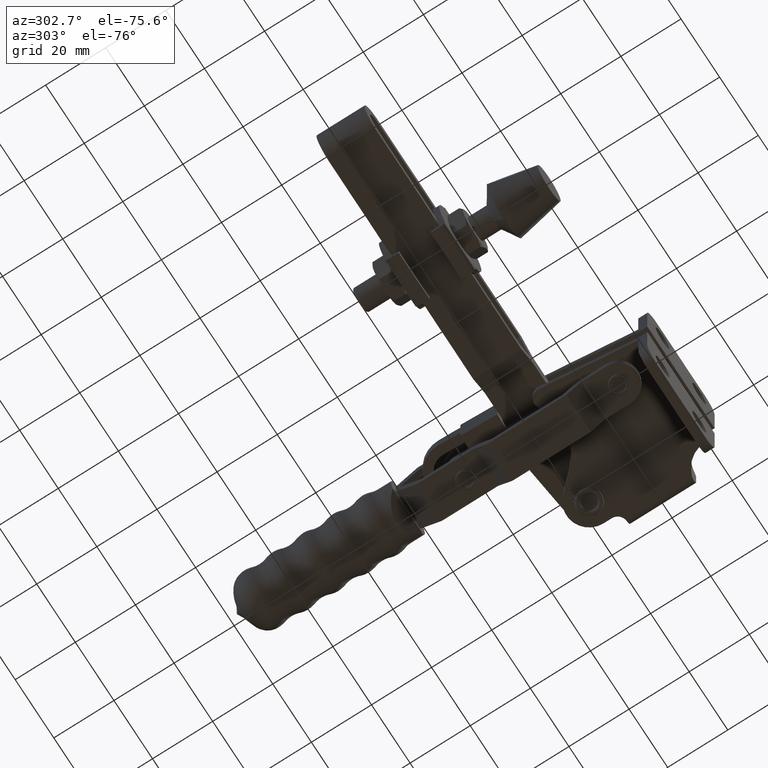
[diagram: clean part render]
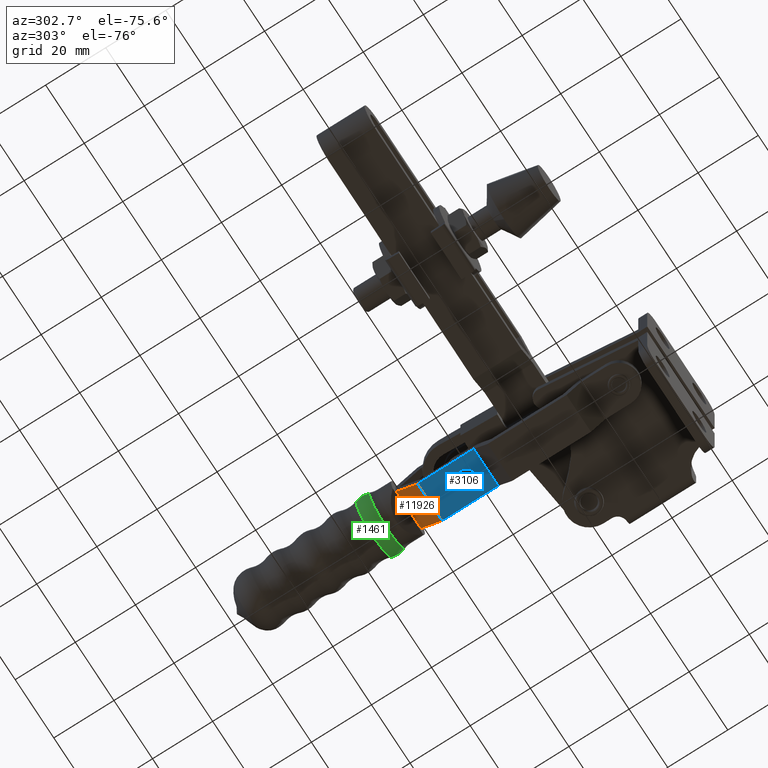
[diagram: same view with three faces highlighted in distinct colors, each labeled with its STEP entity id]
A machine part, auxiliary view with three faces highlighted in distinct colors.
Their STEP definitions:

[orange] entity #11926 — the highlighted planar face has unit normal (-0, -0.657, 0.7539).
#722 = LINE ( 'NONE', #4469, #7827 ) ;
#753 = AXIS2_PLACEMENT_3D ( 'NONE', #8274, #6411, #903 ) ;
#903 = DIRECTION ( 'NONE',  ( -6.188014670768188000E-017, -0.7539095027499086400, -0.6569782809677846600 ) ) ;
#1265 = VERTEX_POINT ( 'NONE', #8858 ) ;
#1568 = VECTOR ( 'NONE', #11826, 1000.000000000000000 ) ;
#2345 = VERTEX_POINT ( 'NONE', #9423 ) ;
#2883 = CARTESIAN_POINT ( 'NONE',  ( -30.45000000000020900, 83.99999999999963100, -3.099999999999995600 ) ) ;
#3305 = LINE ( 'NONE', #3766, #10426 ) ;
#3316 = CARTESIAN_POINT ( 'NONE',  ( -43.15000000000021200, 76.99999999999973000, -9.199999999999995700 ) ) ;
#3733 = LINE ( 'NONE', #5334, #1568 ) ;
#3766 = CARTESIAN_POINT ( 'NONE',  ( -30.45000000000020900, 83.99999999999963100, -3.099999999999995600 ) ) ;
#4469 = CARTESIAN_POINT ( 'NONE',  ( -30.45000000000020900, 76.99999999999970200, -9.199999999999995700 ) ) ;
#4587 = VECTOR ( 'NONE', #10752, 1000.000000000000000 ) ;
#5334 = CARTESIAN_POINT ( 'NONE',  ( -30.45000000000020900, 76.99999999999970200, -9.199999999999995700 ) ) ;
#5487 = PLANE ( 'NONE',  #753 ) ;
#5794 = ORIENTED_EDGE ( 'NONE', *, *, #10070, .T. ) ;
#5855 = FACE_OUTER_BOUND ( 'NONE', #8667, .T. ) ;
#5936 = VERTEX_POINT ( 'NONE', #9985 ) ;
#6411 = DIRECTION ( 'NONE',  ( -4.820246789765649200E-017, -0.6569782809677847700, 0.7539095027499087600 ) ) ;
#7417 = EDGE_CURVE ( 'NONE', #5936, #9729, #722, .T. ) ;
#7645 = ORIENTED_EDGE ( 'NONE', *, *, #7417, .F. ) ;
#7827 = VECTOR ( 'NONE', #10096, 1000.000000000000000 ) ;
#8274 = CARTESIAN_POINT ( 'NONE',  ( -30.45000000000020900, 76.99999999999970200, -9.199999999999995700 ) ) ;
#8547 = ORIENTED_EDGE ( 'NONE', *, *, #10874, .F. ) ;
#8667 = EDGE_LOOP ( 'NONE', ( #10627, #8547, #7645, #5794 ) ) ;
#8858 = CARTESIAN_POINT ( 'NONE',  ( -43.15000000000021200, 76.99999999999973000, -9.199999999999995700 ) ) ;
#9423 = CARTESIAN_POINT ( 'NONE',  ( -43.15000000000021900, 83.99999999999965900, -3.099999999999994300 ) ) ;
#9729 = VERTEX_POINT ( 'NONE', #2883 ) ;
#9949 = EDGE_CURVE ( 'NONE', #1265, #2345, #11245, .T. ) ;
#9985 = CARTESIAN_POINT ( 'NONE',  ( -30.45000000000020900, 76.99999999999970200, -9.199999999999995700 ) ) ;
#10070 = EDGE_CURVE ( 'NONE', #5936, #1265, #3733, .T. ) ;
#10096 = DIRECTION ( 'NONE',  ( -4.914215575483375600E-017, 0.7539095027499087600, 0.6569782809677847700 ) ) ;
#10426 = VECTOR ( 'NONE', #11203, 1000.000000000000000 ) ;
#10627 = ORIENTED_EDGE ( 'NONE', *, *, #9949, .T. ) ;
#10752 = DIRECTION ( 'NONE',  ( -4.914215575483375600E-017, 0.7539095027499087600, 0.6569782809677847700 ) ) ;
#10874 = EDGE_CURVE ( 'NONE', #9729, #2345, #3305, .T. ) ;
#11203 = DIRECTION ( 'NONE',  ( -1.000000000000000000, 6.037836059286573500E-035, 7.000092359566945500E-019 ) ) ;
#11245 = LINE ( 'NONE', #3316, #4587 ) ;
#11826 = DIRECTION ( 'NONE',  ( -1.000000000000000000, 6.037836059286573500E-035, 7.000092359566945500E-019 ) ) ;
#11926 = ADVANCED_FACE ( 'NONE', ( #5855 ), #5487, .F. ) ;

[blue] entity #3106 — the highlighted planar face has unit normal (0, 0, 1).
#409 = VERTEX_POINT ( 'NONE', #7790 ) ;
#493 = DIRECTION ( 'NONE',  ( -7.000092359567007100E-019, -1.120141832160471200E-017, -1.000000000000000000 ) ) ;
#620 = CARTESIAN_POINT ( 'NONE',  ( -39.91409646632142500, 64.89999999999987800, -9.199999999999986900 ) ) ;
#1265 = VERTEX_POINT ( 'NONE', #8858 ) ;
#1502 = LINE ( 'NONE', #10519, #6417 ) ;
#1568 = VECTOR ( 'NONE', #11826, 1000.000000000000000 ) ;
#2028 = FACE_OUTER_BOUND ( 'NONE', #5081, .T. ) ;
#2088 = EDGE_CURVE ( 'NONE', #10900, #4609, #2363, .T. ) ;
#2129 = VERTEX_POINT ( 'NONE', #620 ) ;
#2313 = FACE_BOUND ( 'NONE', #11300, .T. ) ;
#2363 = LINE ( 'NONE', #6739, #7019 ) ;
#2730 = CIRCLE ( 'NONE', #3392, 3.114096466321200700 ) ;
#3106 = ADVANCED_FACE ( 'NONE', ( #2028, #2313 ), #10634, .F. ) ;
#3392 = AXIS2_PLACEMENT_3D ( 'NONE', #6976, #493, #6020 ) ;
#3425 = CIRCLE ( 'NONE', #9970, 3.114096466321200700 ) ;
#3589 = LINE ( 'NONE', #8371, #7959 ) ;
#3733 = LINE ( 'NONE', #5334, #1568 ) ;
#3911 = DIRECTION ( 'NONE',  ( -7.000092359567007100E-019, -1.120141832160471200E-017, -1.000000000000000000 ) ) ;
#4070 = AXIS2_PLACEMENT_3D ( 'NONE', #6850, #5054, #5985 ) ;
#4170 = CARTESIAN_POINT ( 'NONE',  ( -43.15000000000022600, 58.29000000000017700, -9.199999999999986900 ) ) ;
#4439 = ORIENTED_EDGE ( 'NONE', *, *, #7228, .F. ) ;
#4609 = VERTEX_POINT ( 'NONE', #4170 ) ;
#5054 = DIRECTION ( 'NONE',  ( 7.000092359566945500E-019, 1.120141832160471200E-017, 1.000000000000000000 ) ) ;
#5081 = EDGE_LOOP ( 'NONE', ( #8437, #10331, #11792, #10454 ) ) ;
#5262 = EDGE_CURVE ( 'NONE', #10900, #5936, #1502, .T. ) ;
#5334 = CARTESIAN_POINT ( 'NONE',  ( -30.45000000000020900, 76.99999999999970200, -9.199999999999995700 ) ) ;
#5872 = DIRECTION ( 'NONE',  ( -6.037836059286575600E-035, 1.000000000000000000, -1.120141832160472100E-017 ) ) ;
#5874 = CARTESIAN_POINT ( 'NONE',  ( -30.45000000000020500, 58.29000000000017700, -9.199999999999986900 ) ) ;
#5936 = VERTEX_POINT ( 'NONE', #9985 ) ;
#5985 = DIRECTION ( 'NONE',  ( 1.000000000000000000, -6.037836059286574500E-035, -7.000092359566945500E-019 ) ) ;
#6020 = DIRECTION ( 'NONE',  ( 0.0000000000000000000, -1.000000000000000000, 0.0000000000000000000 ) ) ;
#6417 = VECTOR ( 'NONE', #5872, 1000.000000000000000 ) ;
#6739 = CARTESIAN_POINT ( 'NONE',  ( -30.45000000000020500, 58.29000000000017700, -9.199999999999986900 ) ) ;
#6850 = CARTESIAN_POINT ( 'NONE',  ( -30.45000000000020500, 58.29000000000017700, -9.199999999999986900 ) ) ;
#6976 = CARTESIAN_POINT ( 'NONE',  ( -36.80000000000023200, 64.89999999999987800, -9.199999999999986900 ) ) ;
#7019 = VECTOR ( 'NONE', #8867, 1000.000000000000000 ) ;
#7228 = EDGE_CURVE ( 'NONE', #2129, #409, #2730, .T. ) ;
#7411 = ORIENTED_EDGE ( 'NONE', *, *, #9254, .F. ) ;
#7790 = CARTESIAN_POINT ( 'NONE',  ( -33.68590353367903100, 64.89999999999987800, -9.199999999999986900 ) ) ;
#7959 = VECTOR ( 'NONE', #8416, 1000.000000000000000 ) ;
#8371 = CARTESIAN_POINT ( 'NONE',  ( -43.15000000000022600, 58.29000000000017700, -9.199999999999986900 ) ) ;
#8416 = DIRECTION ( 'NONE',  ( -6.037836059286575600E-035, 1.000000000000000000, -1.120141832160472100E-017 ) ) ;
#8437 = ORIENTED_EDGE ( 'NONE', *, *, #10864, .T. ) ;
#8858 = CARTESIAN_POINT ( 'NONE',  ( -43.15000000000021200, 76.99999999999973000, -9.199999999999995700 ) ) ;
#8867 = DIRECTION ( 'NONE',  ( -1.000000000000000000, 6.037836059286573500E-035, 7.000092359566945500E-019 ) ) ;
#9254 = EDGE_CURVE ( 'NONE', #409, #2129, #3425, .T. ) ;
#9524 = CARTESIAN_POINT ( 'NONE',  ( -36.80000000000023200, 64.89999999999987800, -9.199999999999986900 ) ) ;
#9970 = AXIS2_PLACEMENT_3D ( 'NONE', #9524, #3911, #10441 ) ;
#9985 = CARTESIAN_POINT ( 'NONE',  ( -30.45000000000020900, 76.99999999999970200, -9.199999999999995700 ) ) ;
#10070 = EDGE_CURVE ( 'NONE', #5936, #1265, #3733, .T. ) ;
#10331 = ORIENTED_EDGE ( 'NONE', *, *, #10070, .F. ) ;
#10441 = DIRECTION ( 'NONE',  ( 0.0000000000000000000, -1.000000000000000000, 0.0000000000000000000 ) ) ;
#10454 = ORIENTED_EDGE ( 'NONE', *, *, #2088, .T. ) ;
#10519 = CARTESIAN_POINT ( 'NONE',  ( -30.45000000000020500, 58.29000000000017700, -9.199999999999986900 ) ) ;
#10634 = PLANE ( 'NONE',  #4070 ) ;
#10864 = EDGE_CURVE ( 'NONE', #4609, #1265, #3589, .T. ) ;
#10900 = VERTEX_POINT ( 'NONE', #5874 ) ;
#11300 = EDGE_LOOP ( 'NONE', ( #7411, #4439 ) ) ;
#11792 = ORIENTED_EDGE ( 'NONE', *, *, #5262, .F. ) ;
#11826 = DIRECTION ( 'NONE',  ( -1.000000000000000000, 6.037836059286573500E-035, 7.000092359566945500E-019 ) ) ;

[green] entity #1461 — the highlighted toroidal blend (fillet) surface has major radius 3.7204 mm and minor (blend) radius 6 mm.
#213 = DIRECTION ( 'NONE',  ( -1.224646799147353200E-016, -1.246487069854729000E-032, 1.000000000000000000 ) ) ;
#429 = ORIENTED_EDGE ( 'NONE', *, *, #11865, .T. ) ;
#501 = AXIS2_PLACEMENT_3D ( 'NONE', #2844, #8758, #6598 ) ;
#536 = AXIS2_PLACEMENT_3D ( 'NONE', #2959, #4105, #5847 ) ;
#828 = CARTESIAN_POINT ( 'NONE',  ( -46.06558761842495600, 91.10825214997900900, -0.09999999999998945800 ) ) ;
#1106 = VERTEX_POINT ( 'NONE', #828 ) ;
#1398 = EDGE_CURVE ( 'NONE', #4143, #4484, #11828, .T. ) ;
#1461 = ADVANCED_FACE ( 'NONE', ( #11246 ), #5719, .T. ) ;
#2023 = EDGE_LOOP ( 'NONE', ( #5727, #4140, #429, #9717 ) ) ;
#2844 = CARTESIAN_POINT ( 'NONE',  ( -36.80000000000023900, 93.39963091714528800, -0.09999999999998945800 ) ) ;
#2959 = CARTESIAN_POINT ( 'NONE',  ( -36.80000000000023900, 95.59518003022576200, -0.09999999999998945800 ) ) ;
#3191 = EDGE_CURVE ( 'NONE', #4143, #1106, #5492, .T. ) ;
#3410 = EDGE_CURVE ( 'NONE', #4484, #10602, #6960, .T. ) ;
#3593 = DIRECTION ( 'NONE',  ( 0.0000000000000000000, -0.0000000000000000000, -1.000000000000000000 ) ) ;
#4105 = DIRECTION ( 'NONE',  ( -1.017833934423036900E-016, 1.000000000000000000, -0.0000000000000000000 ) ) ;
#4140 = ORIENTED_EDGE ( 'NONE', *, *, #3191, .T. ) ;
#4143 = VERTEX_POINT ( 'NONE', #8851 ) ;
#4475 = CARTESIAN_POINT ( 'NONE',  ( -36.80000000000023900, 91.10825214997900900, -0.09999999999998945800 ) ) ;
#4484 = VERTEX_POINT ( 'NONE', #4987 ) ;
#4987 = CARTESIAN_POINT ( 'NONE',  ( -27.49577665551507300, 95.59518003022576200, -0.09999999999998833400 ) ) ;
#5411 = DIRECTION ( 'NONE',  ( -1.017833934423036900E-016, 1.000000000000000000, -0.0000000000000000000 ) ) ;
#5492 = CIRCLE ( 'NONE', #9087, 9.265587618424712300 ) ;
#5719 = TOROIDAL_SURFACE ( 'NONE', #501, 3.720356933829293200, 5.999999999999956500 ) ;
#5727 = ORIENTED_EDGE ( 'NONE', *, *, #1398, .F. ) ;
#5847 = DIRECTION ( 'NONE',  ( -1.000000000000000000, 0.0000000000000000000, 0.0000000000000000000 ) ) ;
#6089 = CARTESIAN_POINT ( 'NONE',  ( -46.10422334448541900, 95.59518003022576200, -0.09999999999998945800 ) ) ;
#6156 = CIRCLE ( 'NONE', #9058, 5.999999999999956500 ) ;
#6598 = DIRECTION ( 'NONE',  ( -1.000000000000000000, -1.017833934423036900E-016, 0.0000000000000000000 ) ) ;
#6685 = DIRECTION ( 'NONE',  ( 1.000000000000000000, 0.0000000000000000000, 1.219727444046201400E-016 ) ) ;
#6942 = AXIS2_PLACEMENT_3D ( 'NONE', #9491, #213, #6685 ) ;
#6960 = CIRCLE ( 'NONE', #536, 9.304223344485169600 ) ;
#8758 = DIRECTION ( 'NONE',  ( -1.017833934423036900E-016, 1.000000000000000000, -0.0000000000000000000 ) ) ;
#8851 = CARTESIAN_POINT ( 'NONE',  ( -27.53441238157552800, 91.10825214997900900, -0.09999999999998832000 ) ) ;
#9058 = AXIS2_PLACEMENT_3D ( 'NONE', #9170, #3593, #10099 ) ;
#9087 = AXIS2_PLACEMENT_3D ( 'NONE', #4475, #5411, #11915 ) ;
#9170 = CARTESIAN_POINT ( 'NONE',  ( -40.52035693382953200, 93.39963091714528800, -0.09999999999998945800 ) ) ;
#9491 = CARTESIAN_POINT ( 'NONE',  ( -33.07964306617095200, 93.39963091714528800, -0.09999999999998900000 ) ) ;
#9717 = ORIENTED_EDGE ( 'NONE', *, *, #3410, .F. ) ;
#10099 = DIRECTION ( 'NONE',  ( -1.000000000000000000, 0.0000000000000000000, 0.0000000000000000000 ) ) ;
#10602 = VERTEX_POINT ( 'NONE', #6089 ) ;
#11246 = FACE_OUTER_BOUND ( 'NONE', #2023, .T. ) ;
#11828 = CIRCLE ( 'NONE', #6942, 5.999999999999956500 ) ;
#11865 = EDGE_CURVE ( 'NONE', #1106, #10602, #6156, .T. ) ;
#11915 = DIRECTION ( 'NONE',  ( -1.000000000000000000, 0.0000000000000000000, 0.0000000000000000000 ) ) ;